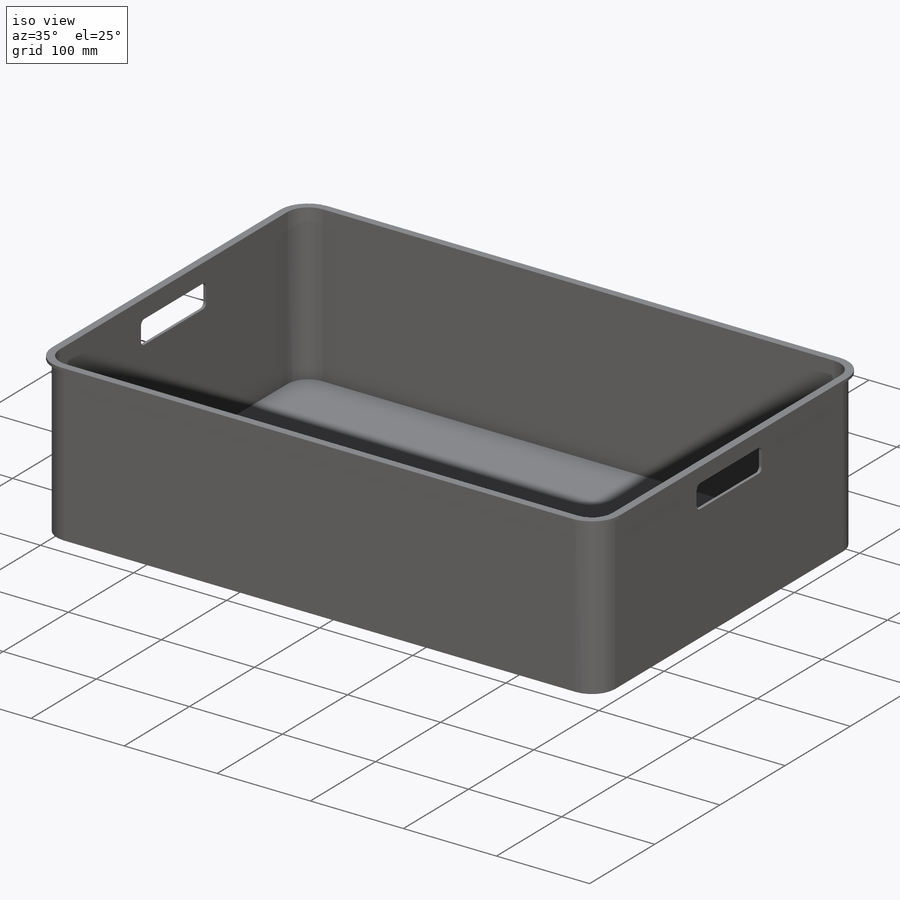
[diagram: iso view]
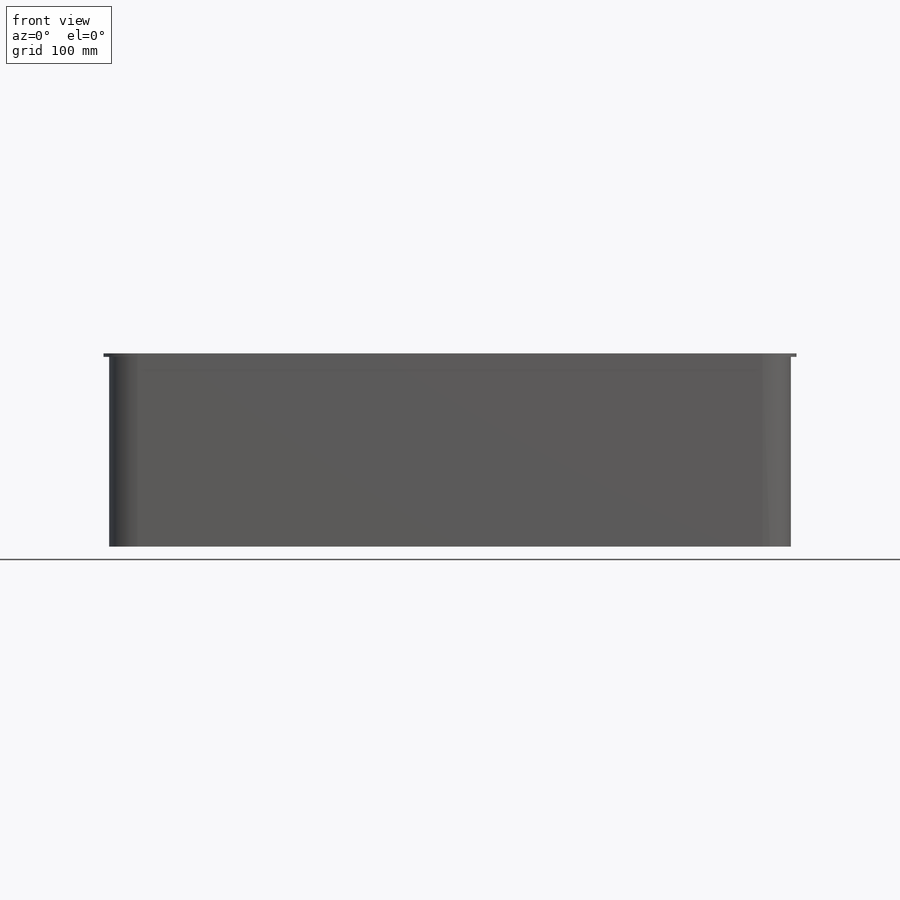
[diagram: front view]
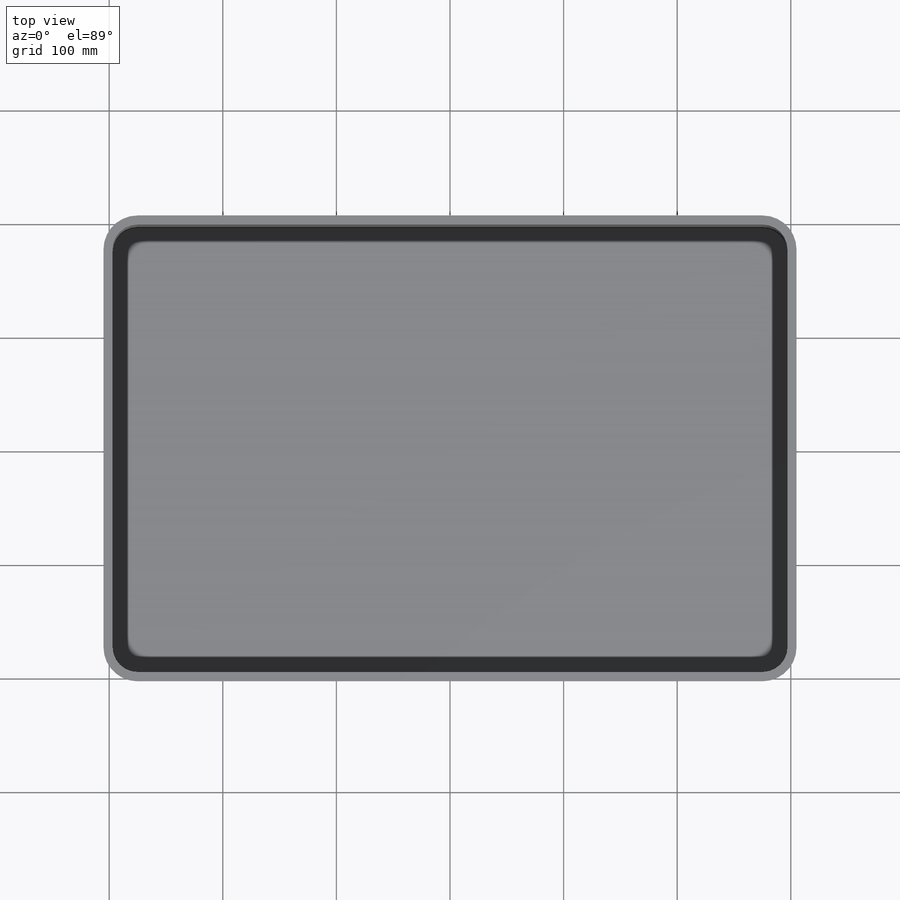
[diagram: top view]
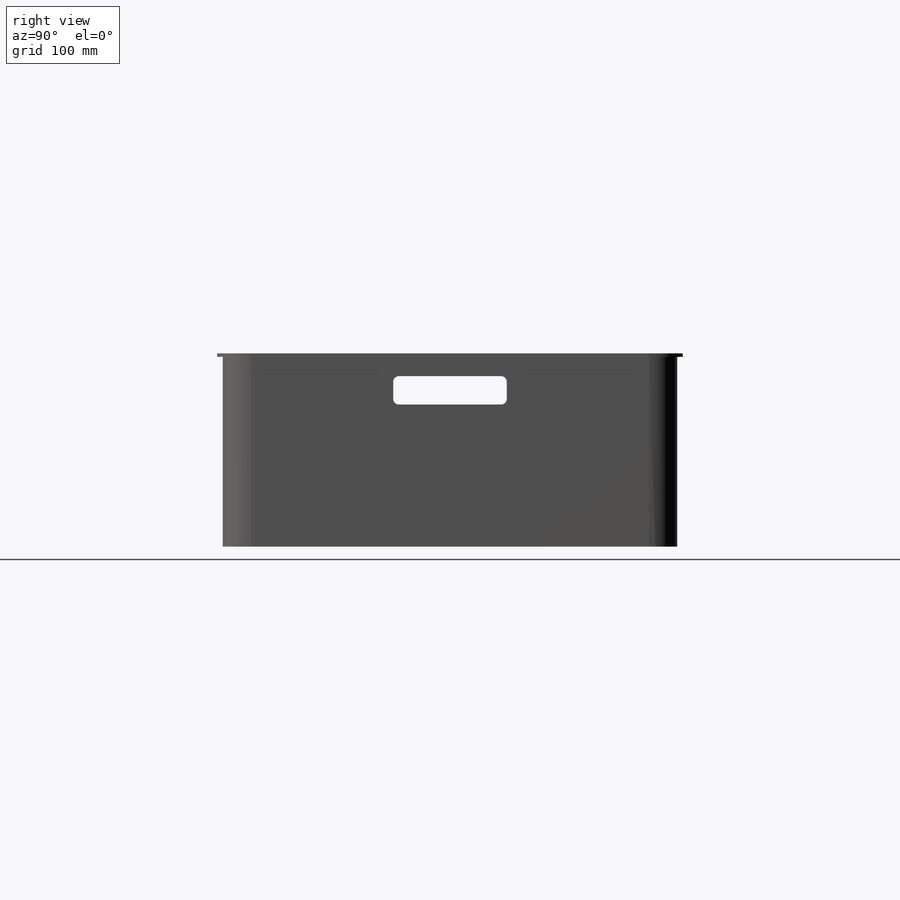
[diagram: right view]
SOLIDWORKS PART (.sldprt)
format: sldprt  version: not decoded by parser v0  size: 221,184 bytes
history: native  units: mm
features: sketch x3, plane x2, material x1, extrude x1, fillet x1, shell x1, cut_extrude x1 (+11 scaffold rows collapsed)
feature tree (21):
  scaffold x11  (default folders/planes/origin — collapsed)
  material  "Material <not specified>"
  sketch  "Sketch1"  dims[D1=400.0mm]
  extrude  "Boss-Extrude1"  Depth=170mm
  fillet  "Fillet1"  Radius=25mm
  shell  "Shell1"  Thickness=3mm
  plane  "Plane1"  Offset=0mm
  sketch  "Sketch2"  dims[c1.D1=25.0mm c2.D1=3.0mm c2.D5=5.0mm c2.D6=1.0mm c2.D7=5.0mm]
  plane  "Plane3"  Offset=0mm
  sketch  "Sketch4"  dims[D1=100.0mm]
  cut_extrude  "Cut-Extrude2"  Depth=1000mm
decode coverage: 7 of 7 modeling features carry decoded parameters
note: suppression state not decoded; provenance and decode notes live in map.json
